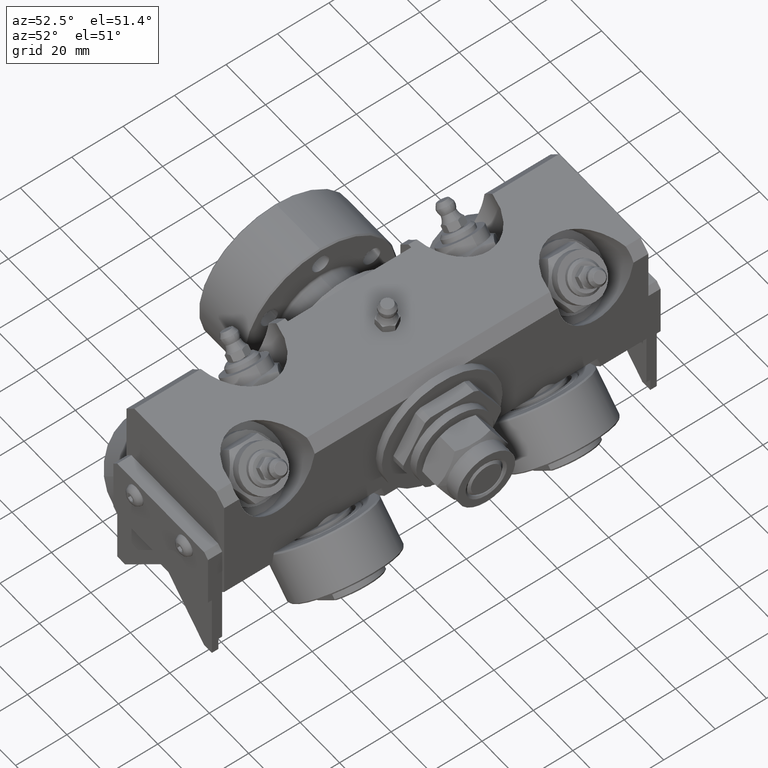
[diagram: clean part render]
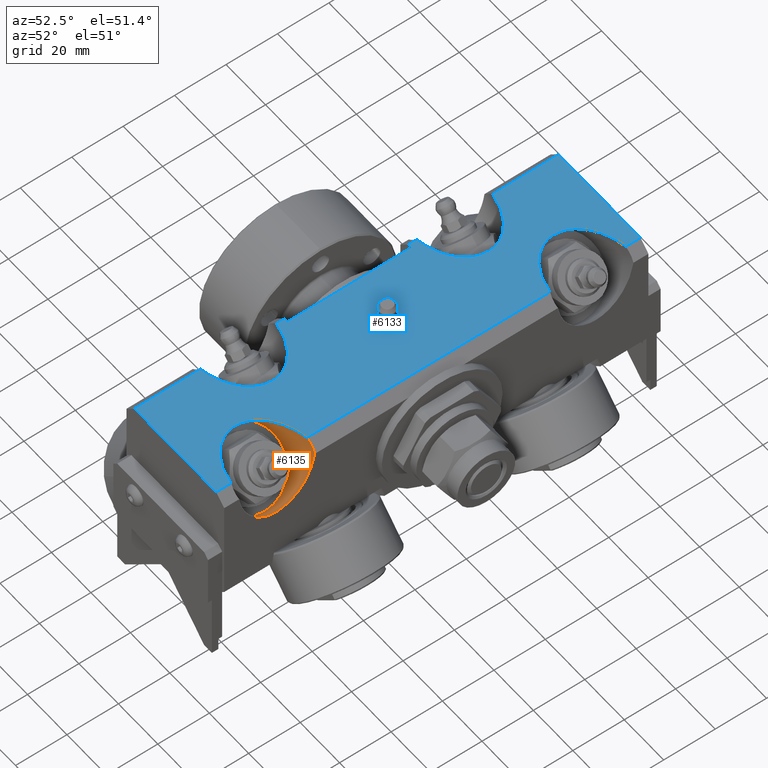
[diagram: same view with the hole feature highlighted: cylindrical wall and planar end face, labeled with their STEP entity ids]
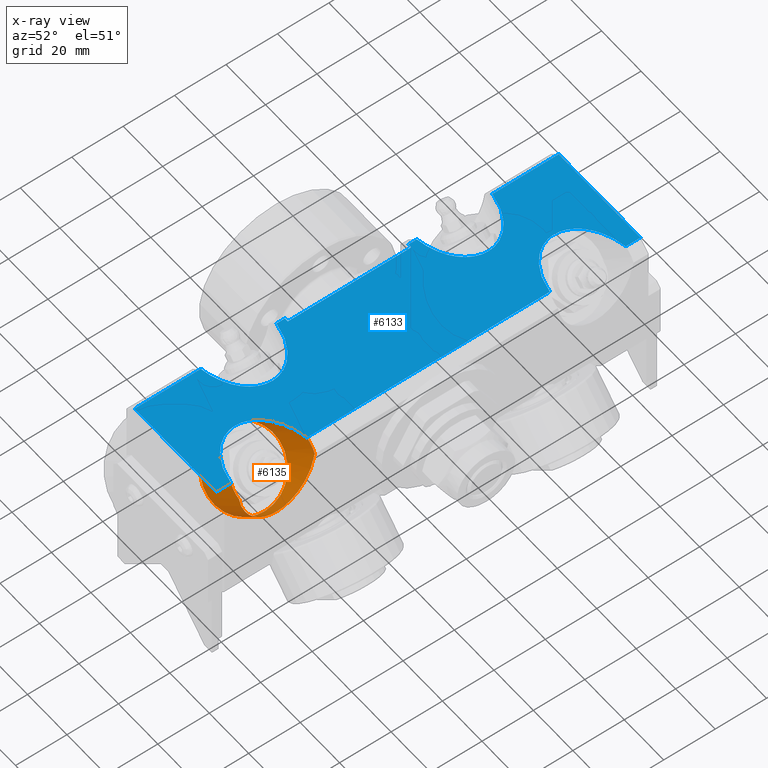
[diagram: x-ray of the same camera — body ghosted, the hole faces saturated]
A machine part, auxiliary view. The highlighted faces form one hole feature of diameter 30 mm: the cylindrical wall (entity #6135, orange) and its adjacent planar end face (entity #6133, blue) — they share a circular edge in the B-rep.
The next image is the same camera in x-ray (body ghosted, the hole faces saturated) — the bore reads through the body.
Wall:
#388=ELLIPSE('',#6977,21.2132034355964,15.);
#389=ELLIPSE('',#6978,21.2132034355964,15.);
#392=ELLIPSE('',#6983,21.2132034355964,15.);
#702=FACE_OUTER_BOUND('',#1057,.T.);
#1057=EDGE_LOOP('',(#4482,#4483,#4484,#4485,#4486,#4487,#4488,#4489));
#1480=CIRCLE('',#6984,15.);
#1481=CIRCLE('',#6985,15.);
#1482=CIRCLE('',#6986,15.);
#1970=LINE('',#10592,#2339);
#2339=VECTOR('',#7969,15.);
#2745=VERTEX_POINT('',#10568);
#2746=VERTEX_POINT('',#10570);
#2747=VERTEX_POINT('',#10572);
#2753=VERTEX_POINT('',#10587);
#2754=VERTEX_POINT('',#10588);
#2755=VERTEX_POINT('',#10591);
#3416=EDGE_CURVE('',#2745,#2746,#388,.T.);
#3417=EDGE_CURVE('',#2746,#2747,#389,.T.);
#3424=EDGE_CURVE('',#2753,#2754,#392,.T.);
#3425=EDGE_CURVE('',#2747,#2753,#1480,.T.);
#3426=EDGE_CURVE('',#2746,#2755,#1970,.T.);
#3427=EDGE_CURVE('',#2755,#2755,#1481,.T.);
#3428=EDGE_CURVE('',#2754,#2745,#1482,.T.);
#4482=ORIENTED_EDGE('',*,*,#3424,.F.);
#4483=ORIENTED_EDGE('',*,*,#3425,.F.);
#4484=ORIENTED_EDGE('',*,*,#3417,.F.);
#4485=ORIENTED_EDGE('',*,*,#3426,.T.);
#4486=ORIENTED_EDGE('',*,*,#3427,.F.);
#4487=ORIENTED_EDGE('',*,*,#3426,.F.);
#4488=ORIENTED_EDGE('',*,*,#3416,.F.);
#4489=ORIENTED_EDGE('',*,*,#3428,.F.);
#6011=CYLINDRICAL_SURFACE('',#6982,15.);
#6135=ADVANCED_FACE('',(#702),#6011,.F.);
#6977=AXIS2_PLACEMENT_3D('',#10571,#7949,#7950);
#6978=AXIS2_PLACEMENT_3D('',#10573,#7951,#7952);
#6982=AXIS2_PLACEMENT_3D('',#10586,#7963,#7964);
#6983=AXIS2_PLACEMENT_3D('',#10589,#7965,#7966);
#6984=AXIS2_PLACEMENT_3D('',#10590,#7967,#7968);
#6985=AXIS2_PLACEMENT_3D('',#10593,#7970,#7971);
#6986=AXIS2_PLACEMENT_3D('',#10594,#7972,#7973);
#7949=DIRECTION('center_axis',(8.97149918889015E-17,0.,-1.));
#7950=DIRECTION('ref_axis',(1.,0.,0.));
#7951=DIRECTION('center_axis',(8.97149918889015E-17,0.,-1.));
#7952=DIRECTION('ref_axis',(1.,0.,0.));
#7963=DIRECTION('center_axis',(0.707106781186548,0.,0.707106781186547));
#7964=DIRECTION('ref_axis',(0.707106781186547,0.,-0.707106781186548));
#7965=DIRECTION('center_axis',(-1.,0.,4.48574959444508E-16));
#7966=DIRECTION('ref_axis',(-4.18691322315673E-16,0.,-1.));
#7967=DIRECTION('center_axis',(-0.707106781186548,0.,-0.707106781186547));
#7968=DIRECTION('ref_axis',(0.707106781186547,0.,-0.707106781186548));
#7969=DIRECTION('',(-0.707106781186548,0.,-0.707106781186547));
#7970=DIRECTION('center_axis',(0.707106781186548,0.,0.707106781186547));
#7971=DIRECTION('ref_axis',(0.707106781186547,0.,-0.707106781186548));
#7972=DIRECTION('center_axis',(-0.707106781186548,0.,-0.707106781186547));
#7973=DIRECTION('ref_axis',(0.707106781186547,0.,-0.707106781186548));
#10568=CARTESIAN_POINT('',(20.714,-76.7260093711772,24.75));
#10570=CARTESIAN_POINT('',(3.53679656440355,-62.,24.75));
#10571=CARTESIAN_POINT('Origin',(24.75,-62.,24.75));
#10572=CARTESIAN_POINT('',(20.714,-47.2739906288228,24.75));
#10573=CARTESIAN_POINT('Origin',(24.75,-62.,24.75));
#10586=CARTESIAN_POINT('Origin',(15.3250564670709,-62.,15.3250564670709));
#10587=CARTESIAN_POINT('',(24.75,-47.2739906288228,20.714));
#10588=CARTESIAN_POINT('',(24.75,-76.7260093711772,20.714));
#10589=CARTESIAN_POINT('Origin',(24.75,-62.,24.75));
#10590=CARTESIAN_POINT('Origin',(22.732,-62.,22.732));
#10591=CARTESIAN_POINT('',(-2.68848878365639,-62.,18.5247146519401));
#10592=CARTESIAN_POINT('',(4.7184547492727,-62.,25.9316581848692));
#10593=CARTESIAN_POINT('Origin',(7.91811293414182,-62.,7.91811293414185));
#10594=CARTESIAN_POINT('Origin',(22.732,-62.,22.732));
End face:
#385=ELLIPSE('',#6964,21.2132034355964,15.);
#386=ELLIPSE('',#6969,21.2132034355964,15.);
#388=ELLIPSE('',#6977,21.2132034355964,15.);
#389=ELLIPSE('',#6978,21.2132034355964,15.);
#390=ELLIPSE('',#6979,21.2132034355964,15.);
#391=ELLIPSE('',#6980,21.2132034355964,15.);
#404=FACE_BOUND('',#1055,.T.);
#513=PLANE('',#6976);
#700=FACE_OUTER_BOUND('',#1054,.T.);
#1054=EDGE_LOOP('',(#4459,#4460,#4461,#4462,#4463,#4464,#4465,#4466,#4467,
#4468,#4469,#4470,#4471,#4472,#4473,#4474,#4475,#4476));
#1055=EDGE_LOOP('',(#4477));
#1451=CIRCLE('',#6907,2.4585);
#1895=LINE('',#9803,#2264);
#1901=LINE('',#9814,#2270);
#1906=LINE('',#9838,#2275);
#1928=LINE('',#9919,#2297);
#1930=LINE('',#9926,#2299);
#1950=LINE('',#10483,#2319);
#1964=LINE('',#10567,#2333);
#1965=LINE('',#10569,#2334);
#1966=LINE('',#10575,#2335);
#1967=LINE('',#10581,#2336);
#1968=LINE('',#10583,#2337);
#1969=LINE('',#10584,#2338);
#2264=VECTOR('',#7642,10.);
#2270=VECTOR('',#7650,10.);
#2275=VECTOR('',#7657,10.);
#2297=VECTOR('',#7723,10.);
#2299=VECTOR('',#7731,10.);
#2319=VECTOR('',#7831,10.);
#2333=VECTOR('',#7947,10.);
#2334=VECTOR('',#7948,10.);
#2335=VECTOR('',#7953,10.);
#2336=VECTOR('',#7958,10.);
#2337=VECTOR('',#7959,10.);
#2338=VECTOR('',#7960,10.);
#2645=VERTEX_POINT('',#9800);
#2646=VERTEX_POINT('',#9802);
#2650=VERTEX_POINT('',#9812);
#2654=VERTEX_POINT('',#9836);
#2691=VERTEX_POINT('',#9918);
#2693=VERTEX_POINT('',#9924);
#2710=VERTEX_POINT('',#10082);
#2724=VERTEX_POINT('',#10480);
#2725=VERTEX_POINT('',#10482);
#2740=VERTEX_POINT('',#10546);
#2742=VERTEX_POINT('',#10554);
#2745=VERTEX_POINT('',#10568);
#2746=VERTEX_POINT('',#10570);
#2747=VERTEX_POINT('',#10572);
#2748=VERTEX_POINT('',#10574);
#2749=VERTEX_POINT('',#10576);
#2750=VERTEX_POINT('',#10578);
#2751=VERTEX_POINT('',#10580);
#2752=VERTEX_POINT('',#10582);
#3262=EDGE_CURVE('',#2646,#2645,#1895,.T.);
#3268=EDGE_CURVE('',#2645,#2650,#1901,.T.);
#3274=EDGE_CURVE('',#2650,#2654,#1906,.T.);
#3314=EDGE_CURVE('',#2646,#2691,#1928,.T.);
#3318=EDGE_CURVE('',#2693,#2654,#1930,.T.);
#3343=EDGE_CURVE('',#2710,#2710,#1451,.T.);
#3370=EDGE_CURVE('',#2724,#2725,#1950,.T.);
#3403=EDGE_CURVE('',#2740,#2691,#385,.T.);
#3407=EDGE_CURVE('',#2693,#2742,#386,.T.);
#3414=EDGE_CURVE('',#2725,#2742,#1964,.T.);
#3415=EDGE_CURVE('',#2745,#2724,#1965,.T.);
#3416=EDGE_CURVE('',#2745,#2746,#388,.T.);
#3417=EDGE_CURVE('',#2746,#2747,#389,.T.);
#3418=EDGE_CURVE('',#2748,#2747,#1966,.T.);
#3419=EDGE_CURVE('',#2748,#2749,#390,.T.);
#3420=EDGE_CURVE('',#2749,#2750,#391,.T.);
#3421=EDGE_CURVE('',#2751,#2750,#1967,.T.);
#3422=EDGE_CURVE('',#2752,#2751,#1968,.T.);
#3423=EDGE_CURVE('',#2740,#2752,#1969,.T.);
#4459=ORIENTED_EDGE('',*,*,#3274,.T.);
#4460=ORIENTED_EDGE('',*,*,#3318,.F.);
#4461=ORIENTED_EDGE('',*,*,#3407,.T.);
#4462=ORIENTED_EDGE('',*,*,#3414,.F.);
#4463=ORIENTED_EDGE('',*,*,#3370,.F.);
#4464=ORIENTED_EDGE('',*,*,#3415,.F.);
#4465=ORIENTED_EDGE('',*,*,#3416,.T.);
#4466=ORIENTED_EDGE('',*,*,#3417,.T.);
#4467=ORIENTED_EDGE('',*,*,#3418,.F.);
#4468=ORIENTED_EDGE('',*,*,#3419,.T.);
#4469=ORIENTED_EDGE('',*,*,#3420,.T.);
#4470=ORIENTED_EDGE('',*,*,#3421,.F.);
#4471=ORIENTED_EDGE('',*,*,#3422,.F.);
#4472=ORIENTED_EDGE('',*,*,#3423,.F.);
#4473=ORIENTED_EDGE('',*,*,#3403,.T.);
#4474=ORIENTED_EDGE('',*,*,#3314,.F.);
#4475=ORIENTED_EDGE('',*,*,#3262,.T.);
#4476=ORIENTED_EDGE('',*,*,#3268,.T.);
#4477=ORIENTED_EDGE('',*,*,#3343,.T.);
#6133=ADVANCED_FACE('',(#700,#404),#513,.T.);
#6907=AXIS2_PLACEMENT_3D('',#10083,#7781,#7782);
#6964=AXIS2_PLACEMENT_3D('',#10547,#7918,#7919);
#6969=AXIS2_PLACEMENT_3D('',#10555,#7929,#7930);
#6976=AXIS2_PLACEMENT_3D('',#10566,#7945,#7946);
#6977=AXIS2_PLACEMENT_3D('',#10571,#7949,#7950);
#6978=AXIS2_PLACEMENT_3D('',#10573,#7951,#7952);
#6979=AXIS2_PLACEMENT_3D('',#10577,#7954,#7955);
#6980=AXIS2_PLACEMENT_3D('',#10579,#7956,#7957);
#7642=DIRECTION('',(1.,0.,8.97149918889015E-17));
#7650=DIRECTION('',(0.,-1.,0.));
#7657=DIRECTION('',(-1.,0.,-8.97149918889015E-17));
#7723=DIRECTION('',(0.,1.,0.));
#7731=DIRECTION('',(0.,1.,0.));
#7781=DIRECTION('center_axis',(8.97149918889015E-17,0.,-1.));
#7782=DIRECTION('ref_axis',(1.,0.,8.97149918889015E-17));
#7831=DIRECTION('',(-1.,0.,-8.97149918889015E-17));
#7918=DIRECTION('center_axis',(8.97149918889015E-17,0.,-1.));
#7919=DIRECTION('ref_axis',(1.,0.,1.04672830578918E-16));
#7929=DIRECTION('center_axis',(8.97149918889015E-17,0.,-1.));
#7930=DIRECTION('ref_axis',(1.,0.,1.04672830578918E-16));
#7945=DIRECTION('center_axis',(-8.97149918889015E-17,0.,1.));
#7946=DIRECTION('ref_axis',(1.,0.,8.97149918889015E-17));
#7947=DIRECTION('',(0.,1.,0.));
#7948=DIRECTION('',(0.,-1.,0.));
#7949=DIRECTION('center_axis',(8.97149918889015E-17,0.,-1.));
#7950=DIRECTION('ref_axis',(1.,0.,0.));
#7951=DIRECTION('center_axis',(8.97149918889015E-17,0.,-1.));
#7952=DIRECTION('ref_axis',(1.,0.,0.));
#7953=DIRECTION('',(0.,-1.,0.));
#7954=DIRECTION('center_axis',(8.97149918889015E-17,0.,-1.));
#7955=DIRECTION('ref_axis',(1.,0.,0.));
#7956=DIRECTION('center_axis',(8.97149918889015E-17,0.,-1.));
#7957=DIRECTION('ref_axis',(1.,0.,0.));
#7958=DIRECTION('',(0.,-1.,0.));
#7959=DIRECTION('',(1.,0.,8.97149918889015E-17));
#7960=DIRECTION('',(0.,1.,0.));
#9800=CARTESIAN_POINT('',(-19.25,24.,24.75));
#9802=CARTESIAN_POINT('',(-20.714,24.,24.75));
#9803=CARTESIAN_POINT('',(-24.75,24.,24.75));
#9812=CARTESIAN_POINT('',(-19.25,-24.,24.75));
#9814=CARTESIAN_POINT('',(-19.25,-2.22044604925031E-15,24.75));
#9836=CARTESIAN_POINT('',(-20.714,-24.,24.75));
#9838=CARTESIAN_POINT('',(-24.75,-24.,24.75));
#9918=CARTESIAN_POINT('',(-20.714,27.2739906288228,24.75));
#9919=CARTESIAN_POINT('',(-20.714,0.,24.75));
#9924=CARTESIAN_POINT('',(-20.714,-27.2739906288227,24.75));
#9926=CARTESIAN_POINT('',(-20.714,0.,24.75));
#10082=CARTESIAN_POINT('',(-2.4585,-3.01079415570377E-16,24.75));
#10083=CARTESIAN_POINT('Origin',(-4.44089209850063E-15,0.,24.75));
#10480=CARTESIAN_POINT('',(20.714,-82.5,24.75));
#10482=CARTESIAN_POINT('',(-20.714,-82.5,24.75));
#10483=CARTESIAN_POINT('',(-24.75,-82.5,24.75));
#10546=CARTESIAN_POINT('',(-20.714,56.7260093711772,24.75));
#10547=CARTESIAN_POINT('Origin',(-24.75,42.,24.75));
#10554=CARTESIAN_POINT('',(-20.714,-56.7260093711772,24.75));
#10555=CARTESIAN_POINT('Origin',(-24.75,-42.,24.75));
#10566=CARTESIAN_POINT('Origin',(-24.75,0.,24.75));
#10567=CARTESIAN_POINT('',(-20.714,0.,24.75));
#10568=CARTESIAN_POINT('',(20.714,-76.7260093711772,24.75));
#10569=CARTESIAN_POINT('',(20.714,0.,24.75));
#10570=CARTESIAN_POINT('',(3.53679656440355,-62.,24.75));
#10571=CARTESIAN_POINT('Origin',(24.75,-62.,24.75));
#10572=CARTESIAN_POINT('',(20.714,-47.2739906288228,24.75));
#10573=CARTESIAN_POINT('Origin',(24.75,-62.,24.75));
#10574=CARTESIAN_POINT('',(20.714,47.2739906288227,24.75));
#10575=CARTESIAN_POINT('',(20.714,0.,24.75));
#10576=CARTESIAN_POINT('',(3.5367965644035,62.,24.75));
#10577=CARTESIAN_POINT('Origin',(24.7499999999999,62.,24.75));
#10578=CARTESIAN_POINT('',(20.714,76.7260093711772,24.75));
#10579=CARTESIAN_POINT('Origin',(24.7499999999999,62.,24.75));
#10580=CARTESIAN_POINT('',(20.714,82.5,24.75));
#10581=CARTESIAN_POINT('',(20.714,0.,24.75));
#10582=CARTESIAN_POINT('',(-20.714,82.5,24.75));
#10583=CARTESIAN_POINT('',(-24.75,82.5,24.75));
#10584=CARTESIAN_POINT('',(-20.714,0.,24.75));